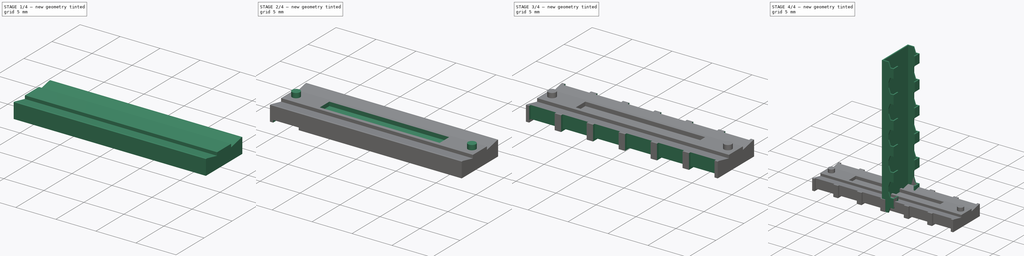
[diagram: build sequence overview — one tinted view per stage of 4, left to right]
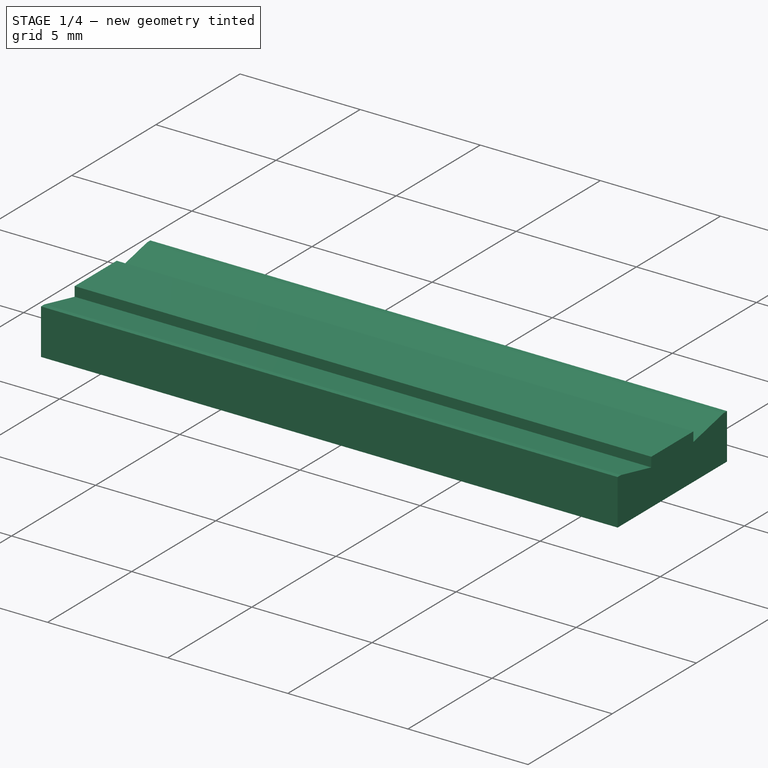
[diagram: stage 1 of 4 — iso view after this stage's code; geometry added in this stage tinted green]
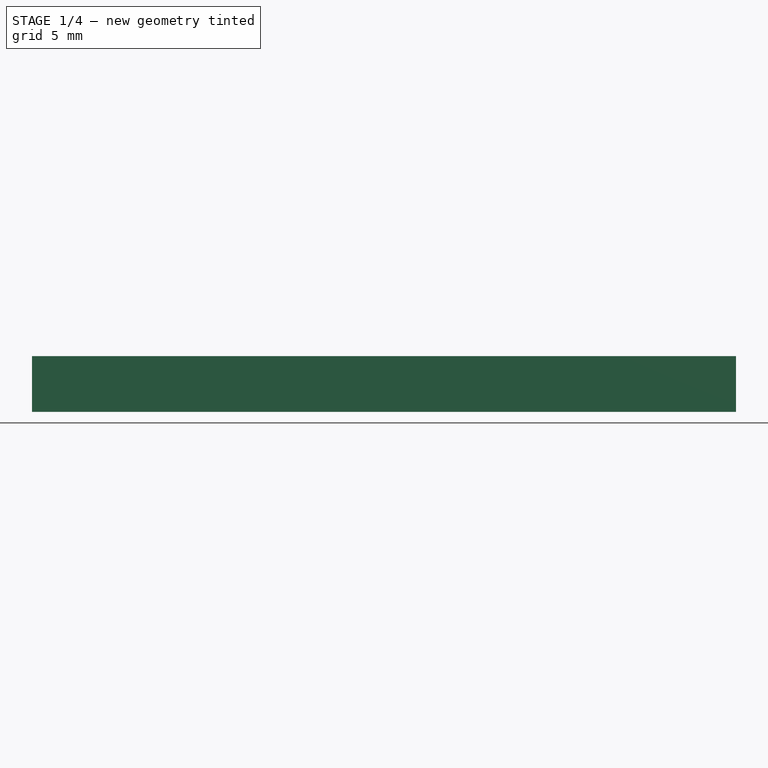
[diagram: stage 1 of 4 — front view after this stage's code; geometry added in this stage tinted green]
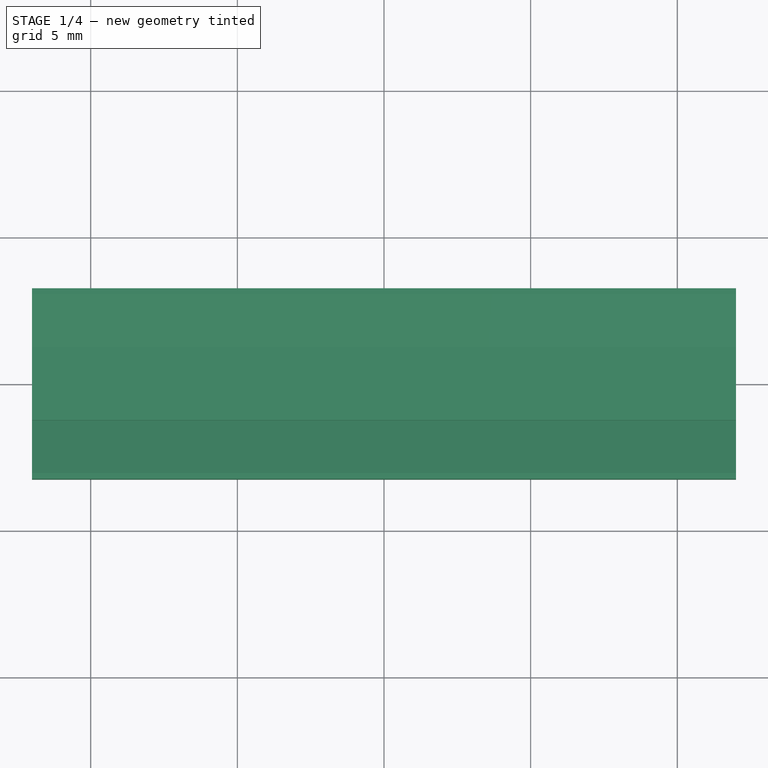
[diagram: stage 1 of 4 — top view after this stage's code; geometry added in this stage tinted green]
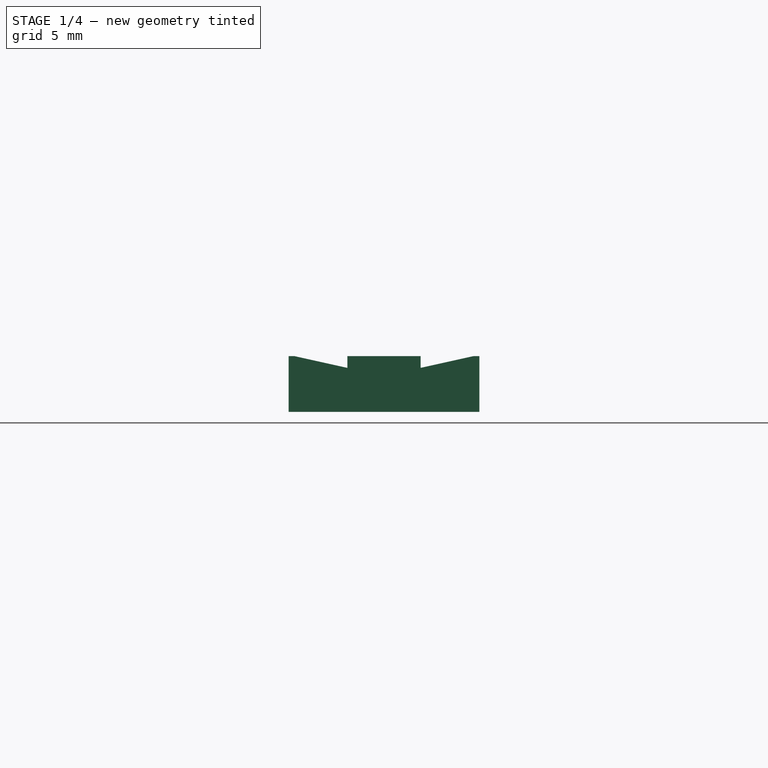
[diagram: stage 1 of 4 — right view after this stage's code; geometry added in this stage tinted green]
FCSTD DOCUMENT  (FreeCAD 0.19R24276 (Git))
Label: JL-6P-4.0PH-1.98-copper-part
License: All rights reserved
LicenseURL: http://en.wikipedia.org/wiki/All_rights_reserved
objects: Sketcher::SketchObject×8, PartDesign::Pocket×5, PartDesign::Pad×3, PartDesign::LinearPattern×3, PartDesign::Body×2, App::Part×2, PartDesign::Mirrored×1
note: 30 computed .brp shape members not serialized (recipe doc carries the construction recipe); baked Part::Feature solids carry a one-line shape summary decoded from their .brp

FEATURE [PartDesign::Body] Body001
  Group = -> [Sketch006,Pad002,Sketch007,Pocket004,LinearPattern002]
  Origin = -> Origin002
  Tip = -> LinearPattern002
FEATURE [App::Part] Part001  label="Copper"
  Group = -> [Body001]
  Origin = -> Origin004
FEATURE [Sketcher::SketchObject] Sketch
  FullyConstrained = true
  MapMode = 5
  Support = -> [XY_Plane]
  sketch-geometry (4):
    g0: LineSegment StartX=-12 StartY=3.25 StartZ=0 EndX=12 EndY=3.25 EndZ=0
    g1: LineSegment StartX=12 StartY=3.25 StartZ=0 EndX=12 EndY=-3.25 EndZ=0
    g2: LineSegment StartX=12 StartY=-3.25 StartZ=0 EndX=-12 EndY=-3.25 EndZ=0
    g3: LineSegment StartX=-12 StartY=-3.25 StartZ=0 EndX=-12 EndY=3.25 EndZ=0
  constraints (12):
    c: Coincident(g0,g1)
    c: Coincident(g1,g2)
    c: Coincident(g2,g3)
    c: Coincident(g3,g0)
    c: Horizontal(g0)
    c: Horizontal(g2)
    c: Vertical(g1)
    c: Vertical(g3)
    c: DistanceX(g0,g0) = 24
    c: DistanceY(g3,g3) = 6.5
    c: Distance(g0,g-2) = 12
    c: Distance(g0,g-1) = 3.25
FEATURE [PartDesign::Pad] Pad
  Direction = (1,1,1)
  Length = 1.9
  Length2 = 100
  Profile = -> Sketch
  Type = 0
FEATURE [Sketcher::SketchObject] Sketch001
  ExternalGeometry = -> [Pad]
  FullyConstrained = true
  MapMode = 5
  Placement = pos=(-12,0,0) rot=(0.57735,-0.57735,-0.57735;2.0944rad)
  Support = -> [Pad]
  sketch-geometry (5):
    g0: LineSegment StartX=-3.25 StartY=2 StartZ=0 EndX=-1.25 EndY=2 EndZ=0
    g1: LineSegment StartX=-1.25 StartY=2 StartZ=0 EndX=-1.25 EndY=1.5 EndZ=0
    g2: LineSegment StartX=-3.05 StartY=1.9 StartZ=0 EndX=-3.25 EndY=1.9 EndZ=0
    g3: LineSegment StartX=-3.25 StartY=2 StartZ=0 EndX=-3.25 EndY=1.9 EndZ=0
    g4: LineSegment StartX=-3.05 StartY=1.9 StartZ=0 EndX=-1.25 EndY=1.5 EndZ=0
  constraints (15):
    c: Horizontal(g0)
    c: Coincident(g1,g0)
    c: Horizontal(g2)
    c: Coincident(g3,g0)
    c: Vertical(g3)
    c: Coincident(g4,g2)
    c: Coincident(g4,g1)
    c: PointOnObject(g2,g-3)
    c: Coincident(g2,g3)
    c: PointOnObject(g-4,g3)
    c: DistanceX(g2,g2) = 0.2
    c: DistanceX(g2,g1) = 1.8
    c: Vertical(g1)
    c: Distance(g0,g-3) = 0.1
    c: DistanceY(g1,g1) = 0.5
FEATURE [PartDesign::Pocket] Pocket
  BaseFeature = -> Pad
  Length = 5
  Length2 = 100
  Profile = -> Sketch001
  Type = 1
FEATURE [PartDesign::Mirrored] Mirrored
  BaseFeature = -> Pocket
  MirrorPlane = -> Sketch001 [V_Axis]
  Originals = -> [Pocket]
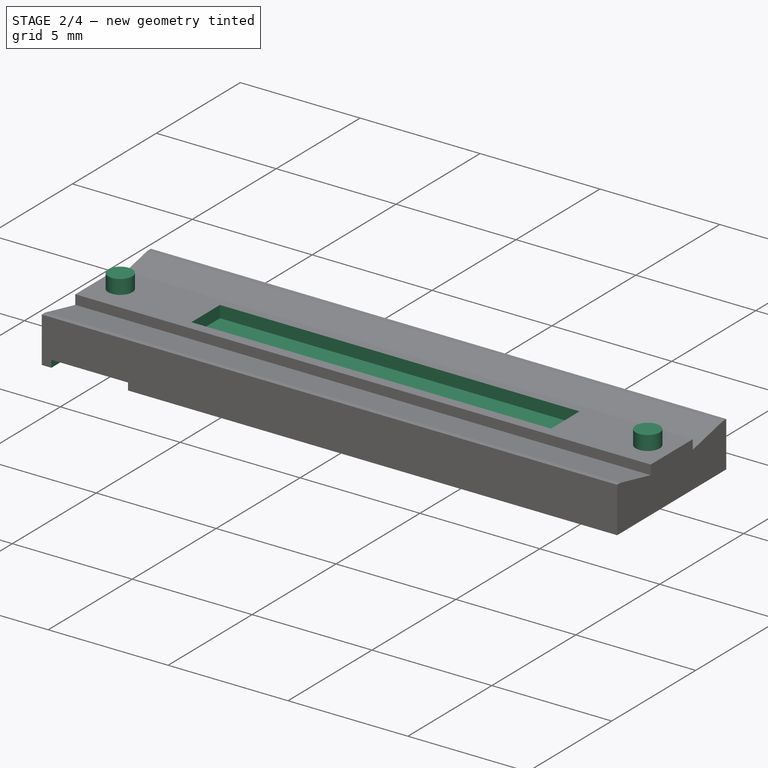
[diagram: stage 2 of 4 — iso view after this stage's code; geometry added in this stage tinted green]
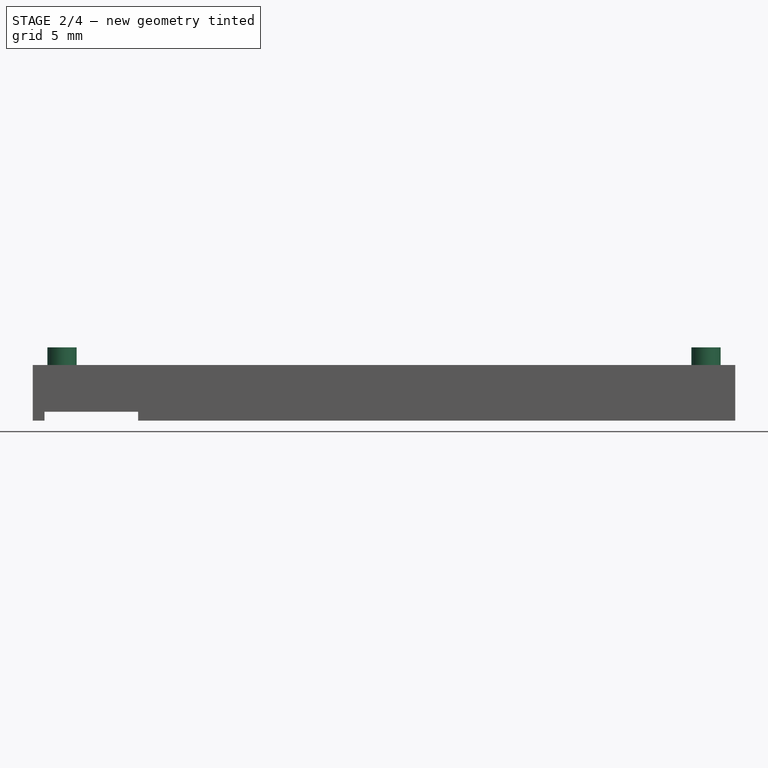
[diagram: stage 2 of 4 — front view after this stage's code; geometry added in this stage tinted green]
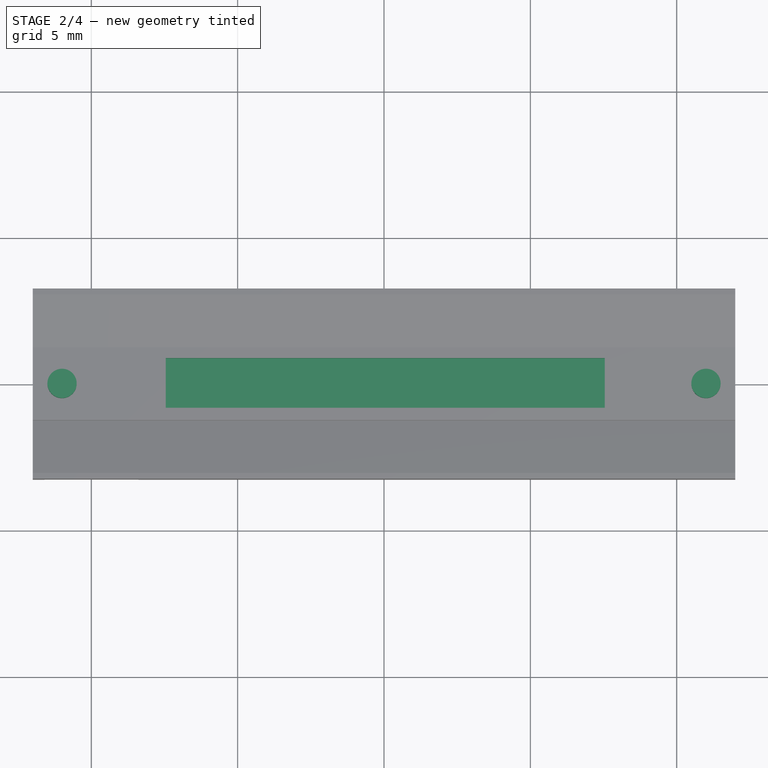
[diagram: stage 2 of 4 — top view after this stage's code; geometry added in this stage tinted green]
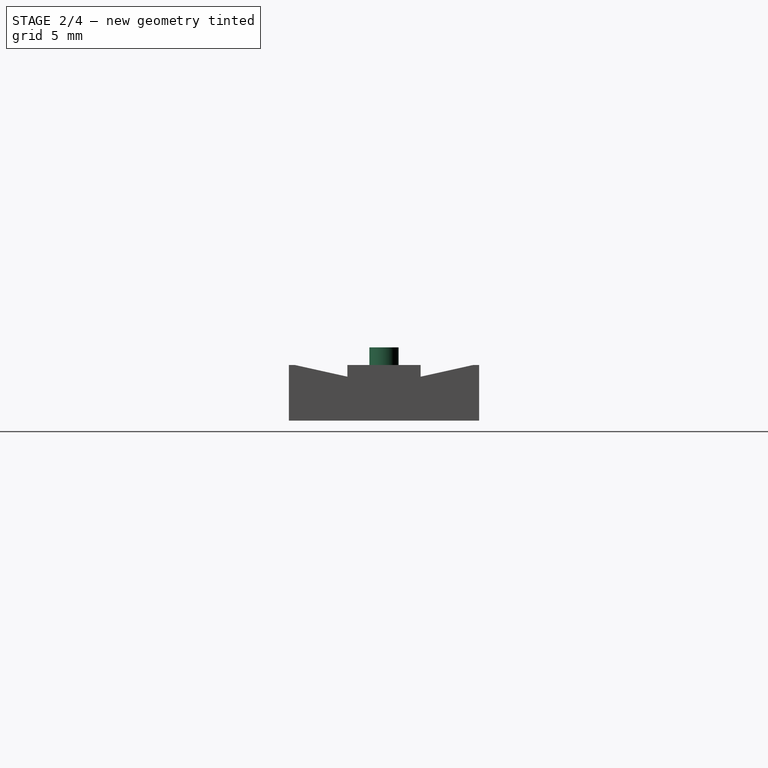
[diagram: stage 2 of 4 — right view after this stage's code; geometry added in this stage tinted green]
FEATURE [Sketcher::SketchObject] Sketch002
  FullyConstrained = true
  MapMode = 5
  Placement = pos=(0,0,1.9) rot=(0,0,1;0rad)
  Support = -> [Mirrored]
  sketch-geometry (2):
    g0: Circle CenterX=-11 CenterY=0 CenterZ=0 NormalX=0 NormalY=0 NormalZ=1 AngleXU=0 Radius=0.5
    g1: Circle CenterX=11 CenterY=0 CenterZ=0 NormalX=0 NormalY=0 NormalZ=1 AngleXU=0 Radius=0.5
  constraints (6):
    c: PointOnObject(g0,g-1)
    c: PointOnObject(g1,g-1)
    c: Diameter(g0) = 1
    c: Diameter(g1) = 1
    c: DistanceX(g0,g1) = 22
    c: Distance(g0,g-2) = 11
FEATURE [PartDesign::Pad] Pad001
  BaseFeature = -> Mirrored
  Direction = (1,1,1)
  Length = 0.6
  Length2 = 100
  Profile = -> Sketch002
  Type = 0
FEATURE [Sketcher::SketchObject] Sketch003
  FullyConstrained = false
  MapMode = 5
  Placement = pos=(0,0,1.9) rot=(0,0,1;0rad)
  Support = -> [Pad001]
  sketch-geometry (4):
    g0: LineSegment StartX=-7.4577 StartY=0.877832 StartZ=0 EndX=7.5423 EndY=0.877832 EndZ=0
    g1: LineSegment StartX=7.5423 StartY=0.877832 StartZ=0 EndX=7.5423 EndY=-0.822168 EndZ=0
    g2: LineSegment StartX=7.5423 StartY=-0.822168 StartZ=0 EndX=-7.4577 EndY=-0.822168 EndZ=0
    g3: LineSegment StartX=-7.4577 StartY=-0.822168 StartZ=0 EndX=-7.4577 EndY=0.877832 EndZ=0
  constraints (10):
    c: Coincident(g0,g1)
    c: Coincident(g1,g2)
    c: Coincident(g2,g3)
    c: Coincident(g3,g0)
    c: Horizontal(g0)
    c: Horizontal(g2)
    c: Vertical(g1)
    c: Vertical(g3)
    c: DistanceX(g0,g0) = 15
    c: DistanceY(g3,g3) = 1.7
FEATURE [PartDesign::Pocket] Pocket001
  BaseFeature = -> Pad001
  Length = 0.5
  Length2 = 100
  Profile = -> Sketch003
  Type = 0
FEATURE [Sketcher::SketchObject] Sketch004
  ExternalGeometry = -> [Pocket001]
  FullyConstrained = false
  MapMode = 5
  Placement = pos=(0,0,0) rot=(1,0,0;3.14159rad)
  Support = -> [Pocket001]
  sketch-geometry (4):
    g0: LineSegment StartX=-11.6 StartY=4.15525 StartZ=0 EndX=-8.4 EndY=4.15525 EndZ=0
    g1: LineSegment StartX=-8.4 StartY=4.15525 StartZ=0 EndX=-8.4 EndY=-4.01796 EndZ=0
    g2: LineSegment StartX=-8.4 StartY=-4.01796 StartZ=0 EndX=-11.6 EndY=-4.01796 EndZ=0
    g3: LineSegment StartX=-11.6 StartY=-4.01796 StartZ=0 EndX=-11.6 EndY=4.15525 EndZ=0
  constraints (10):
    c: Coincident(g0,g1)
    c: Coincident(g1,g2)
    c: Coincident(g2,g3)
    c: Coincident(g3,g0)
    c: Horizontal(g0)
    c: Horizontal(g2)
    c: Vertical(g1)
    c: Vertical(g3)
    c: DistanceX(g0,g0) = 3.2
    c: Distance(g0,g-3) = 0.4
FEATURE [PartDesign::Pocket] Pocket002
  BaseFeature = -> Pocket001
  Length = 0.3
  Length2 = 100
  Profile = -> Sketch004
  Type = 0
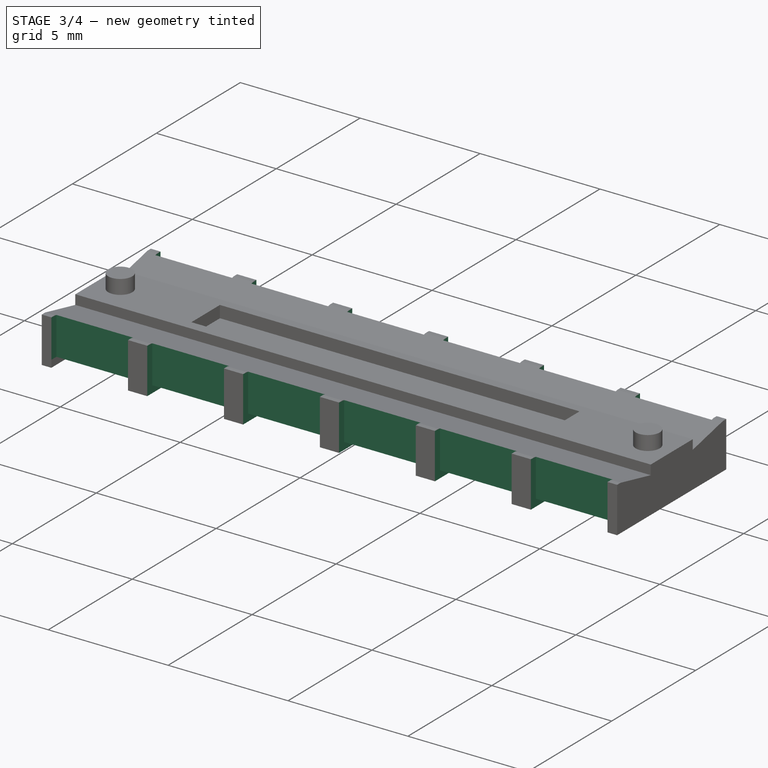
[diagram: stage 3 of 4 — iso view after this stage's code; geometry added in this stage tinted green]
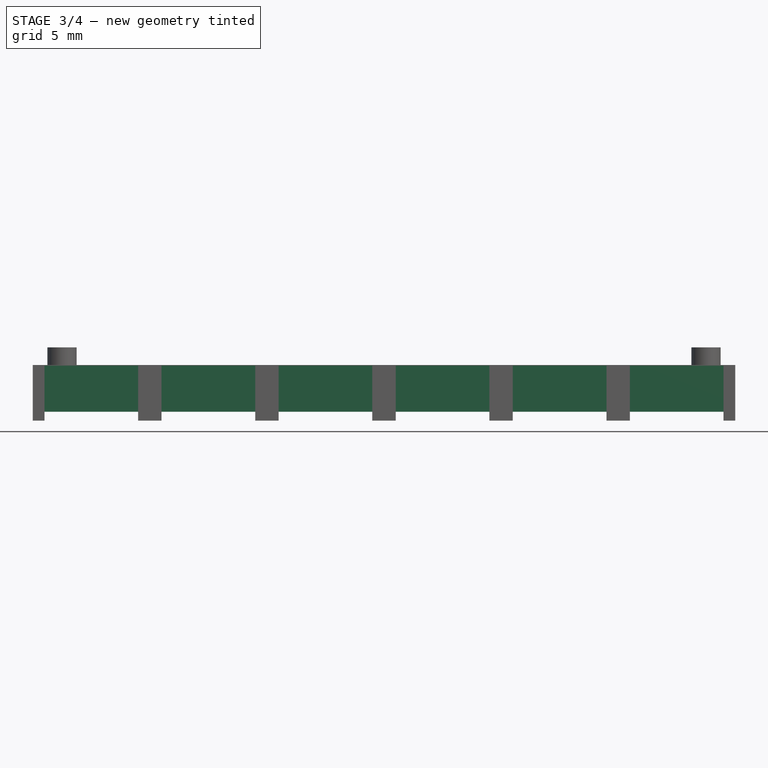
[diagram: stage 3 of 4 — front view after this stage's code; geometry added in this stage tinted green]
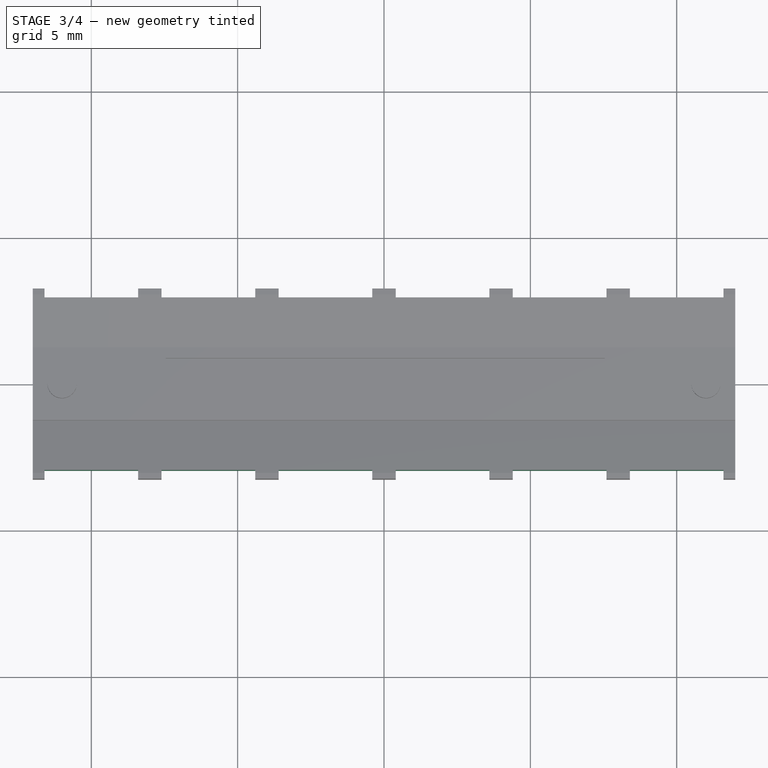
[diagram: stage 3 of 4 — top view after this stage's code; geometry added in this stage tinted green]
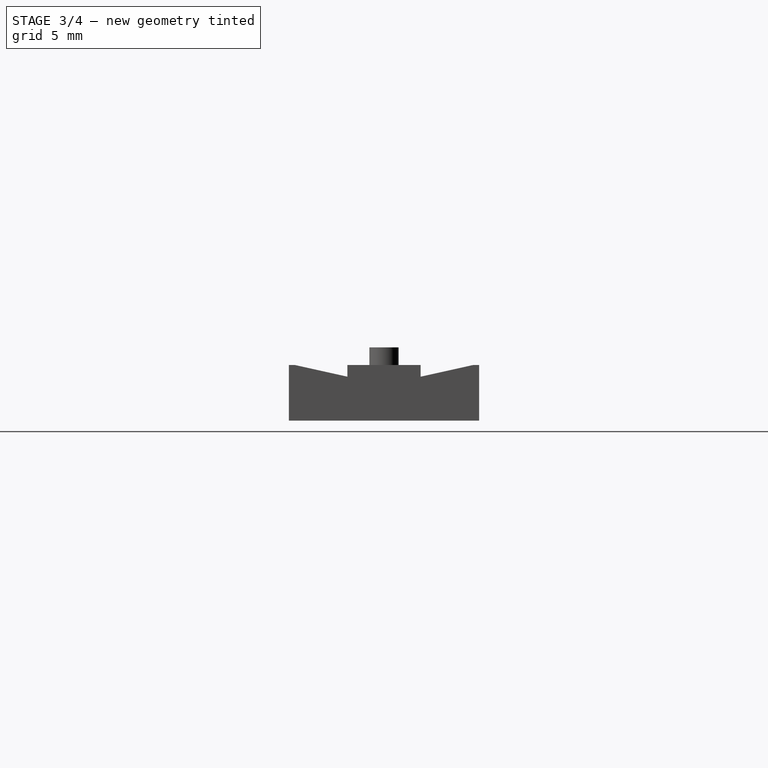
[diagram: stage 3 of 4 — right view after this stage's code; geometry added in this stage tinted green]
FEATURE [PartDesign::LinearPattern] LinearPattern
  BaseFeature = -> Pocket002
  Direction = -> Sketch004 [H_Axis]
  Length = 20
  Occurrences = 6
  Originals = -> [Pocket002]
FEATURE [Sketcher::SketchObject] Sketch005
  ExternalGeometry = -> [LinearPattern]
  FullyConstrained = false
  MapMode = 5
  Placement = pos=(0,0,0) rot=(1,0,0;3.14159rad)
  Support = -> [LinearPattern]
  sketch-geometry (8):
    g0: LineSegment StartX=-11.6 StartY=3.25 StartZ=0 EndX=-8.4 EndY=3.25 EndZ=0
    g1: LineSegment StartX=-8.4 StartY=3.25 StartZ=0 EndX=-8.4 EndY=2.95 EndZ=0
    g2: LineSegment StartX=-8.4 StartY=2.95 StartZ=0 EndX=-11.6 EndY=2.95 EndZ=0
    g3: LineSegment StartX=-11.6 StartY=2.95 StartZ=0 EndX=-11.6 EndY=3.25 EndZ=0
    g4: LineSegment StartX=-11.6 StartY=-3.25 StartZ=0 EndX=-8.4 EndY=-3.25 EndZ=0
    g5: LineSegment StartX=-8.4 StartY=-3.25 StartZ=0 EndX=-8.4 EndY=-2.95 EndZ=0
    g6: LineSegment StartX=-8.4 StartY=-2.95 StartZ=0 EndX=-11.6 EndY=-2.95 EndZ=0
    g7: LineSegment StartX=-11.6 StartY=-2.95 StartZ=0 EndX=-11.6 EndY=-3.25 EndZ=0
  constraints (19):
    c: Coincident(g0,g1)
    c: Coincident(g1,g2)
    c: Coincident(g2,g3)
    c: Coincident(g3,g0)
    c: Horizontal(g0)
    c: Horizontal(g2)
    c: Vertical(g1)
    c: Vertical(g3)
    c: Coincident(g0,g-3)
    c: PointOnObject(g-3,g1)
    c: DistanceY(g3,g3) = 0.3
    c: Coincident(g4,g5)
    c: Coincident(g5,g6)
    c: Coincident(g6,g7)
    c: Coincident(g7,g4)
    c: Horizontal(g4)
    c: Horizontal(g6)
    c: Vertical(g5)
    c: Vertical(g7)
FEATURE [PartDesign::Pocket] Pocket003
  BaseFeature = -> LinearPattern
  Length = 5
  Length2 = 100
  Profile = -> Sketch005
  Type = 0
FEATURE [PartDesign::LinearPattern] LinearPattern001
  BaseFeature = -> Pocket003
  Direction = -> Sketch005 [H_Axis]
  Length = 20
  Occurrences = 6
  Originals = -> [Pocket003]
FEATURE [PartDesign::Body] Body
  Group = -> [Sketch,Pad,Sketch001,Pocket,Mirrored,Sketch002,Pad001,Sketch003,Pocket001,Sketch004,Pocket002,LinearPattern,Sketch005,Pocket003,LinearPattern001]
  Origin = -> Origin
  Tip = -> LinearPattern001
FEATURE [App::Part] Part  label="Base"
  Group = -> [Body]
  Origin = -> Origin003
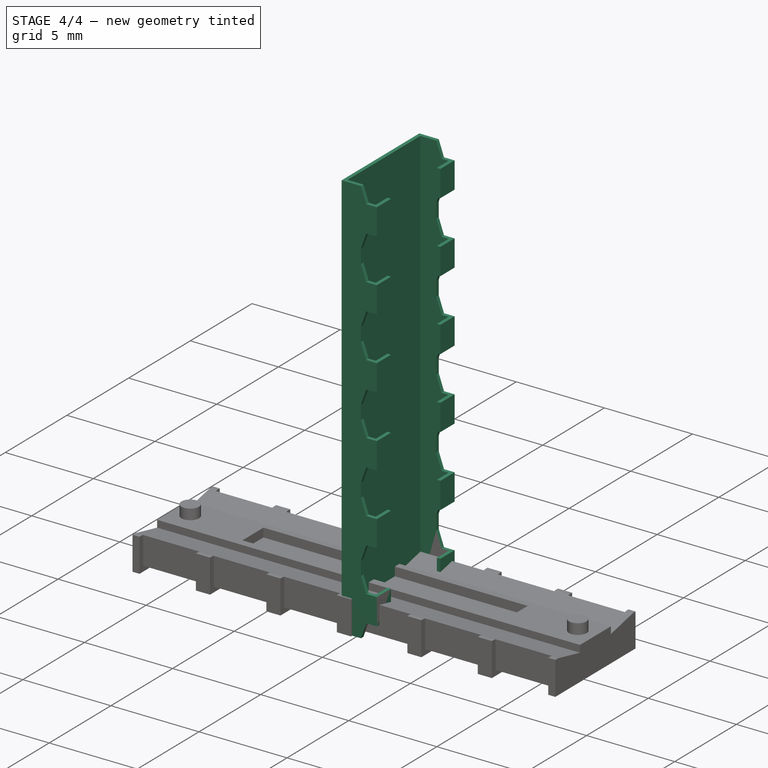
[diagram: stage 4 of 4 — iso view after this stage's code; geometry added in this stage tinted green]
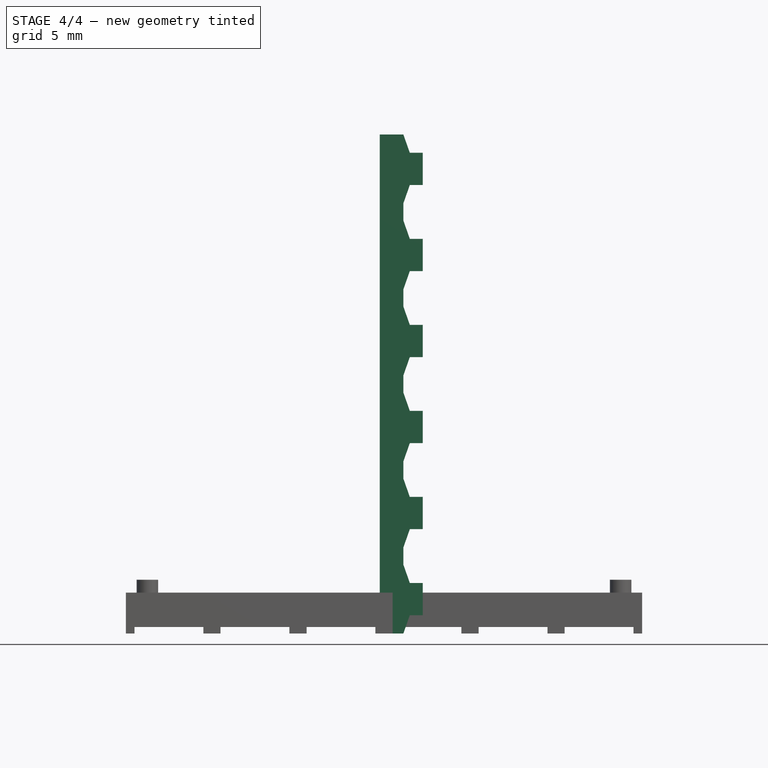
[diagram: stage 4 of 4 — front view after this stage's code; geometry added in this stage tinted green]
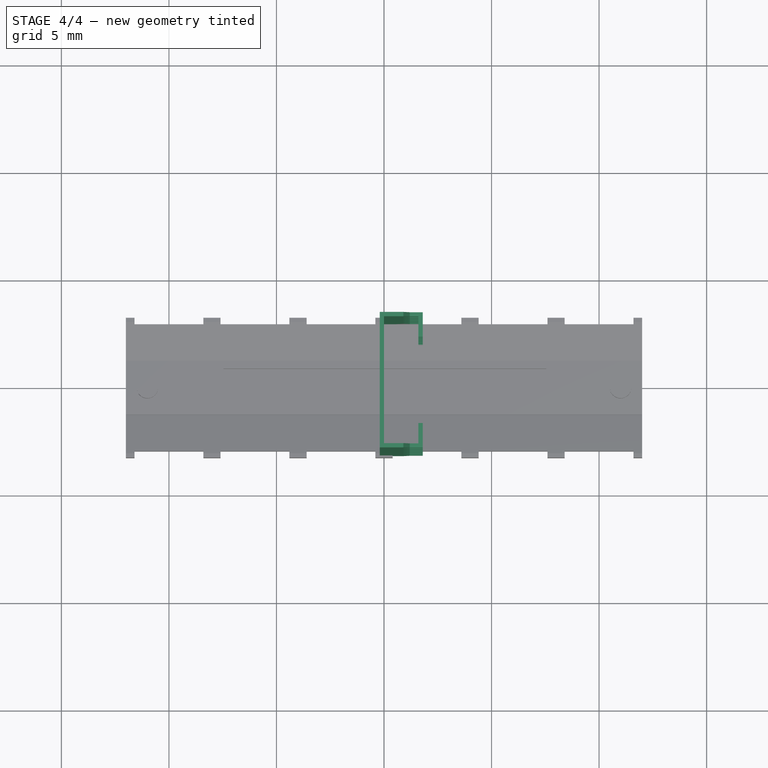
[diagram: stage 4 of 4 — top view after this stage's code; geometry added in this stage tinted green]
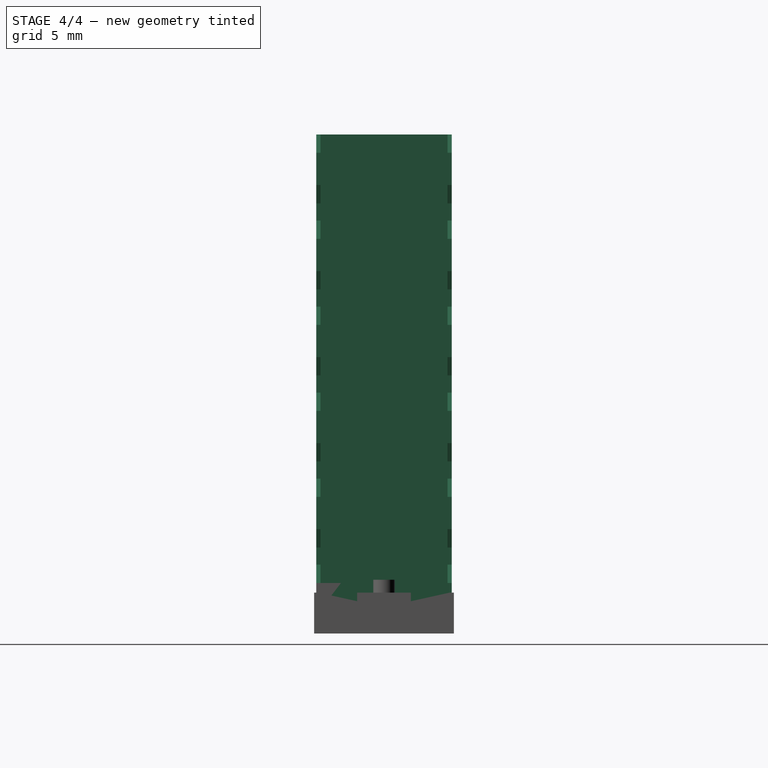
[diagram: stage 4 of 4 — right view after this stage's code; geometry added in this stage tinted green]
FEATURE [Sketcher::SketchObject] Sketch006
  FullyConstrained = false
  MapMode = 5
  sketch-geometry (14):
    g0: LineSegment StartX=-0.2 StartY=0 StartZ=0 EndX=-0.2 EndY=-3.15 EndZ=0
    g1: LineSegment StartX=-0.2 StartY=-3.15 StartZ=0 EndX=1.8 EndY=-3.15 EndZ=0
    g2: LineSegment StartX=1.6 StartY=-2.95 StartZ=0 EndX=0 EndY=-2.95 EndZ=0
    g3: LineSegment StartX=0 StartY=-2.95 StartZ=0 EndX=0 EndY=0 EndZ=0
    g4: LineSegment StartX=1.6 StartY=-2.95 StartZ=0 EndX=1.6 EndY=-2 EndZ=0
    g5: LineSegment StartX=1.6 StartY=-2 StartZ=0 EndX=1.8 EndY=-2 EndZ=0
    g6: LineSegment StartX=1.8 StartY=-2 StartZ=0 EndX=1.8 EndY=-3.15 EndZ=0
    g7: LineSegment StartX=-0.2 StartY=0 StartZ=0 EndX=-0.2 EndY=3.15 EndZ=0
    g8: LineSegment StartX=-0.2 StartY=3.15 StartZ=0 EndX=1.8 EndY=3.15 EndZ=0
    g9: LineSegment StartX=1.6 StartY=2.95 StartZ=0 EndX=0 EndY=2.95 EndZ=0
    g10: LineSegment StartX=0 StartY=2.95 StartZ=0 EndX=0 EndY=0 EndZ=0
    g11: LineSegment StartX=1.6 StartY=2.95 StartZ=0 EndX=1.6 EndY=2 EndZ=0
    g12: LineSegment StartX=1.6 StartY=2 StartZ=0 EndX=1.8 EndY=2 EndZ=0
    g13: LineSegment StartX=1.8 StartY=2 StartZ=0 EndX=1.8 EndY=3.15 EndZ=0
  constraints (36):
    c: Vertical(g0)
    c: Coincident(g1,g0)
    c: Horizontal(g1)
    c: Horizontal(g2)
    c: Coincident(g3,g2)
    c: Vertical(g3)
    c: DistanceY(g0,g0) = 3.15
    c: Distance(g3,g0) = 0.2
    c: Vertical(g4)
    c: Coincident(g5,g4)
    c: Horizontal(g5)
    c: Coincident(g6,g5)
    c: Coincident(g6,g1)
    c: Coincident(g4,g2)
    c: Vertical(g6)
    c: DistanceX(g5,g5) = 0.2
    c: PointOnObject(g3,g-1)
    c: DistanceY(g6,g6) = 1.15
    c: DistanceY(g3,g3) = 2.95
    c: PointOnObject(g3,g-2)
    c: DistanceX(g1,g1) = 2
    c: PointOnObject(g0,g-1)
    c: Vertical(g7)
    c: Coincident(g8,g7)
    c: Horizontal(g8)
    c: Horizontal(g9)
    c: Coincident(g10,g9)
    c: Vertical(g10)
    c: Distance(g10,g7) = 0.2
    c: Vertical(g11)
    c: Coincident(g12,g11)
    c: Horizontal(g12)
    c: Coincident(g13,g12)
    c: Coincident(g13,g8)
    c: Coincident(g11,g9)
    c: Vertical(g13)
FEATURE [PartDesign::Pad] Pad002
  Direction = (1,1,1)
  Length = 23.2
  Length2 = 100
  Profile = -> Sketch006
  Type = 0
FEATURE [Sketcher::SketchObject] Sketch007
  ExternalGeometry = -> [Pad002]
  FullyConstrained = true
  MapMode = 5
  Placement = pos=(0,3.15,0) rot=(0,0.707107,0.707107;3.14159rad)
  Support = -> [Pad002]
  sketch-geometry (9):
    g0: LineSegment StartX=-2.3 StartY=0 StartZ=0 EndX=-0.9 EndY=0 EndZ=0
    g1: LineSegment StartX=-1.2 StartY=0.85 StartZ=0 EndX=-2.2 EndY=0.85 EndZ=0
    g2: LineSegment StartX=-2.2 StartY=0.85 StartZ=0 EndX=-2.2 EndY=2.35 EndZ=0
    g3: LineSegment StartX=-2.2 StartY=2.35 StartZ=0 EndX=-1.2 EndY=2.35 EndZ=0
    g4: LineSegment StartX=-2.3 StartY=4 StartZ=0 EndX=-2.3 EndY=0 EndZ=0
    g5: LineSegment StartX=-0.9 StartY=3.2 StartZ=0 EndX=-1.2 EndY=2.35 EndZ=0
    g6: LineSegment StartX=-1.2 StartY=0.85 StartZ=0 EndX=-0.9 EndY=0 EndZ=0
    g7: LineSegment StartX=-0.9 StartY=3.2 StartZ=0 EndX=-0.9 EndY=4 EndZ=0
    g8: LineSegment StartX=-0.9 StartY=4 StartZ=0 EndX=-2.3 EndY=4 EndZ=0
  constraints (27):
    c: PointOnObject(g0,g-1)
    c: Horizontal(g1)
    c: Coincident(g2,g1)
    c: Vertical(g2)
    c: Coincident(g3,g2)
    c: Horizontal(g3)
    c: Horizontal(g0)
    c: DistanceY(g2,g2) = 1.5
    c: DistanceY(g0,g1) = 0.85
    c: DistanceY(g3,g5) = 0.85
    c: Coincident(g4,g0)
    c: Vertical(g4)
    c: Coincident(g5,g3)
    c: Coincident(g6,g1)
    c: Coincident(g6,g0)
    c: DistanceX(g1,g1) = 1
    c: DistanceX(g0,g0) = 1.4
    c: Distance(g1,g4) = 0.1
    c: DistanceX(g3,g3) = 1
    c: DistanceX(g4,g5) = 1.4
    c: Distance(g2,g-3) = 0.4
    c: Coincident(g7,g5)
    c: Vertical(g7)
    c: Coincident(g8,g7)
    c: Horizontal(g8)
    c: Coincident(g4,g8)
    c: DistanceY(g7,g7) = 0.8
FEATURE [PartDesign::Pocket] Pocket004
  BaseFeature = -> Pad002
  Length = 5
  Length2 = 100
  Profile = -> Sketch007
  Type = 1
FEATURE [PartDesign::LinearPattern] LinearPattern002
  BaseFeature = -> Pocket004
  Direction = -> Z_Axis002
  Length = 24
  Occurrences = 7
  Originals = -> [Pocket004]
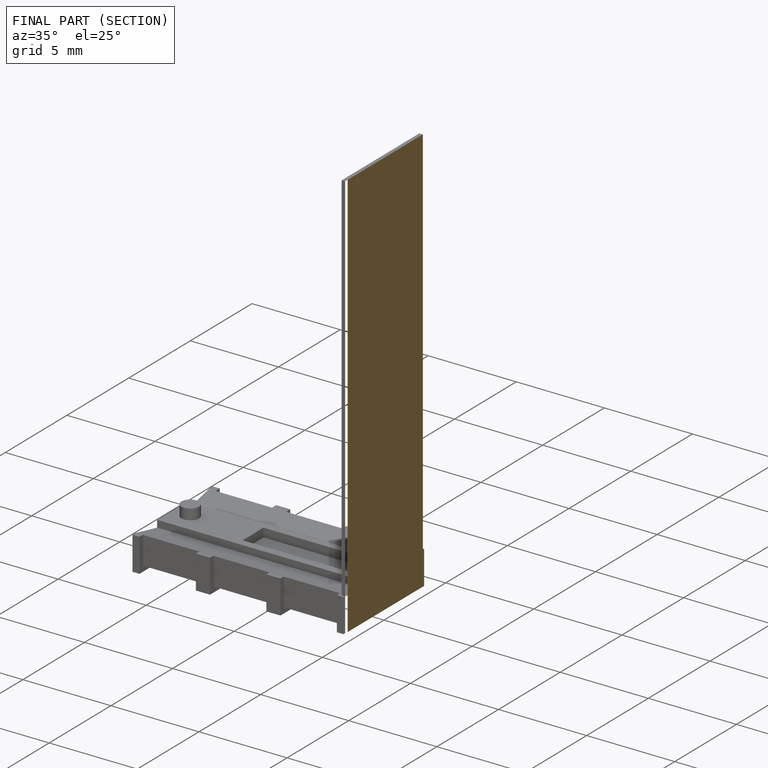
[diagram: finished part — half-section view (interior)]
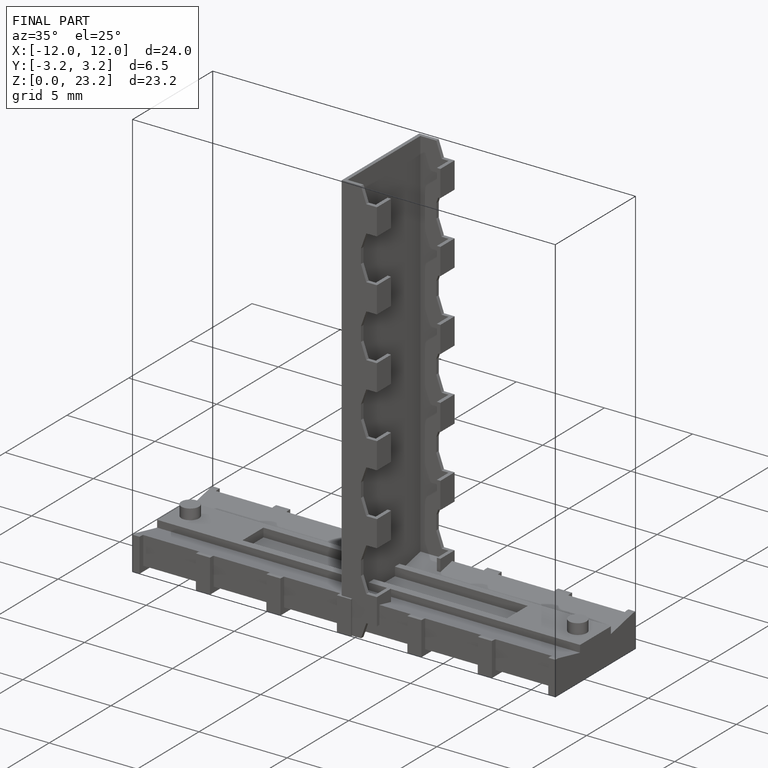
[diagram: finished part — iso view with bounding-box wireframe]
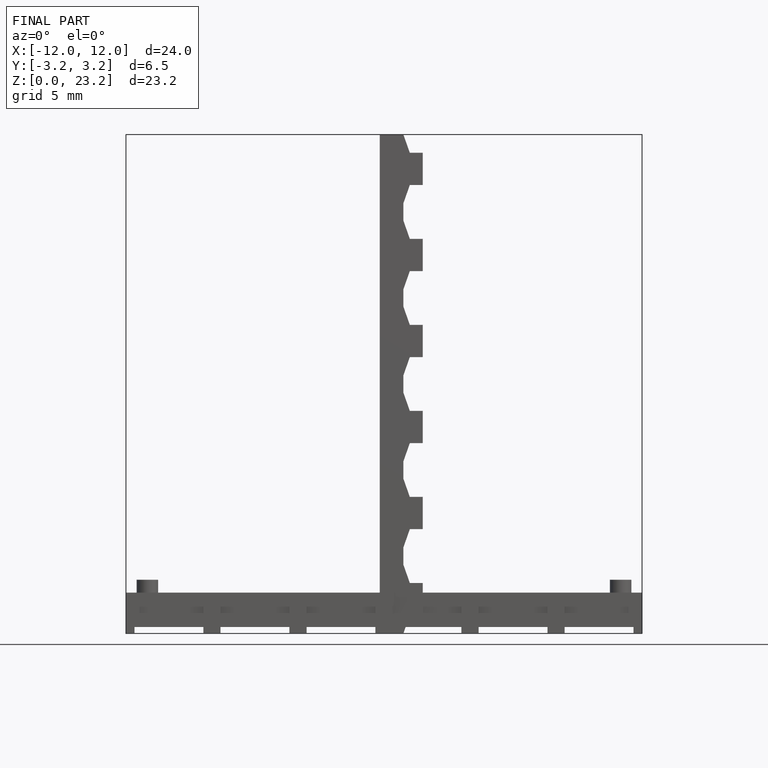
[diagram: finished part — front view with bounding-box wireframe]
